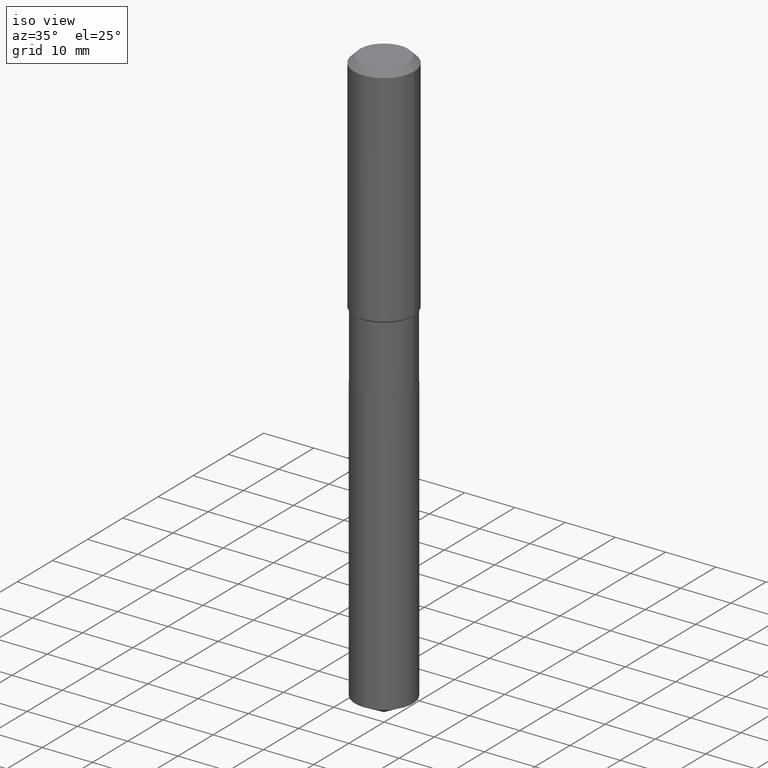
[diagram: clean part render]
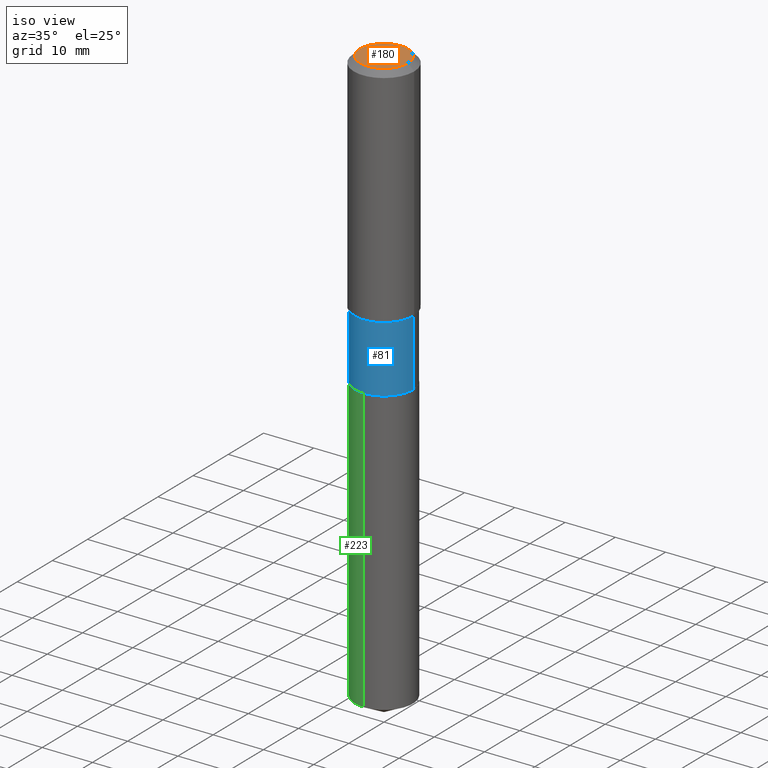
[diagram: same view with three faces highlighted in distinct colors, each labeled with its STEP entity id]
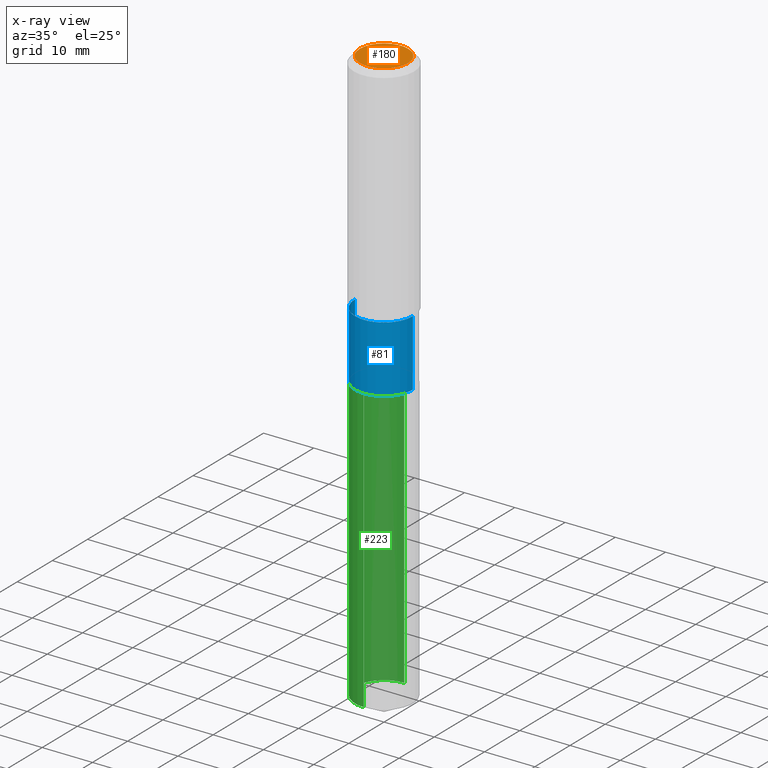
[diagram: x-ray of the same camera — body ghosted, the three highlighted faces saturated]
A machine part, iso view with three faces highlighted in distinct colors.
The next image is the same camera in x-ray (body ghosted, the three faces saturated) — at least one of them is partly hidden behind the body in this view.
Their STEP definitions:

[orange] entity #180 — the highlighted planar face has unit normal (0, -0, -1).
#11 = ORIENTED_EDGE ( 'NONE', *, *, #360, .T. ) ;
#35 = DIRECTION ( 'NONE',  ( 1.000000000000000000, -6.982962677686266711E-15, 4.876185090822587894E-29 ) ) ;
#38 = VERTEX_POINT ( 'NONE', #58 ) ;
#58 = CARTESIAN_POINT ( 'NONE',  ( 0.1889600000000000168, -1.540873453589747738E-15, 3.855188123725863225E-18 ) ) ;
#118 = DIRECTION ( 'NONE',  ( -2.445468806185136597E-29, 3.491481338843145583E-15, 1.000000000000000000 ) ) ;
#132 = EDGE_LOOP ( 'NONE', ( #11, #448 ) ) ;
#143 = DIRECTION ( 'NONE',  ( 1.000000000000000000, -6.982962677686266711E-15, 4.876185090822587894E-29 ) ) ;
#159 = EDGE_CURVE ( 'NONE', #38, #252, #437, .T. ) ;
#171 = AXIS2_PLACEMENT_3D ( 'NONE', #279, #118, #35 ) ;
#180 = ADVANCED_FACE ( 'NONE', ( #382 ), #311, .F. ) ;
#184 = AXIS2_PLACEMENT_3D ( 'NONE', #334, #370, #143 ) ;
#204 = CARTESIAN_POINT ( 'NONE',  ( -0.1889600000000000168, 1.401969416799070942E-15, 3.855188123706346622E-18 ) ) ;
#226 = DIRECTION ( 'NONE',  ( -1.000000000000000000, 6.982962677686265922E-15, -4.876176775795935793E-29 ) ) ;
#229 = AXIS2_PLACEMENT_3D ( 'NONE', #282, #422, #226 ) ;
#252 = VERTEX_POINT ( 'NONE', #204 ) ;
#279 = CARTESIAN_POINT ( 'NONE',  ( -9.427742298522546243E-47, 1.346031739168365344E-32, 3.855188123715862256E-18 ) ) ;
#282 = CARTESIAN_POINT ( 'NONE',  ( -4.713871149261273121E-47, 6.730158695841826722E-33, 1.927594061857931128E-18 ) ) ;
#311 = PLANE ( 'NONE',  #229 ) ;
#334 = CARTESIAN_POINT ( 'NONE',  ( -9.427742298522546243E-47, 1.346031739168365344E-32, 3.855188123715862256E-18 ) ) ;
#360 = EDGE_CURVE ( 'NONE', #252, #38, #391, .T. ) ;
#370 = DIRECTION ( 'NONE',  ( -2.445468806185136597E-29, 3.491481338843145583E-15, 1.000000000000000000 ) ) ;
#382 = FACE_OUTER_BOUND ( 'NONE', #132, .T. ) ;
#391 = CIRCLE ( 'NONE', #184, 0.1889600000000000168 ) ;
#422 = DIRECTION ( 'NONE',  ( 2.438088387897960049E-29, -3.491481338843145188E-15, -1.000000000000000000 ) ) ;
#437 = CIRCLE ( 'NONE', #171, 0.1889600000000000168 ) ;
#448 = ORIENTED_EDGE ( 'NONE', *, *, #159, .T. ) ;

[blue] entity #81 — the highlighted cylindrical surface (edge-blend (fillet) strip) has radius 5.7506 mm, axis along (-0, 0, 1).
#8 = VERTEX_POINT ( 'NONE', #369 ) ;
#12 = EDGE_CURVE ( 'NONE', #105, #8, #23, .T. ) ;
#17 = CIRCLE ( 'NONE', #106, 0.2263999999999999624 ) ;
#23 = LINE ( 'NONE', #362, #36 ) ;
#25 = CARTESIAN_POINT ( 'NONE',  ( 4.359048147025004325E-29, -6.223565486487904770E-15, -1.782499999999999307 ) ) ;
#33 = DIRECTION ( 'NONE',  ( -2.445468806185136877E-29, 3.491481338843145188E-15, 1.000000000000000000 ) ) ;
#36 = VECTOR ( 'NONE', #175, 39.37007874015748143 ) ;
#50 = EDGE_CURVE ( 'NONE', #354, #8, #283, .T. ) ;
#65 = DIRECTION ( 'NONE',  ( 1.000000000000000000, -6.982962677686269077E-15, 0.000000000000000000 ) ) ;
#67 = DIRECTION ( 'NONE',  ( 1.000000000000000000, -6.982962677686265922E-15, 4.876176775795935793E-29 ) ) ;
#70 = CARTESIAN_POINT ( 'NONE',  ( -0.2263999999999999624, -5.523031028960140857E-15, -2.302699999999999303 ) ) ;
#71 = DIRECTION ( 'NONE',  ( -2.445468806185136597E-29, 3.491481338843145583E-15, 1.000000000000000000 ) ) ;
#81 = ADVANCED_FACE ( 'NONE', ( #153 ), #111, .T. ) ;
#105 = VERTEX_POINT ( 'NONE', #188 ) ;
#106 = AXIS2_PLACEMENT_3D ( 'NONE', #466, #294, #65 ) ;
#111 = CYLINDRICAL_SURFACE ( 'NONE', #249, 0.2263999999999999346 ) ;
#120 = DIRECTION ( 'NONE',  ( 1.000000000000000000, -6.982962677686265922E-15, 0.000000000000000000 ) ) ;
#153 = FACE_OUTER_BOUND ( 'NONE', #388, .T. ) ;
#165 = EDGE_CURVE ( 'NONE', #359, #354, #379, .T. ) ;
#175 = DIRECTION ( 'NONE',  ( -2.445468806185136877E-29, 3.491481338843145188E-15, 1.000000000000000000 ) ) ;
#188 = CARTESIAN_POINT ( 'NONE',  ( 0.2263999999999999624, -9.620776829182280876E-15, -2.302699999999999303 ) ) ;
#197 = ORIENTED_EDGE ( 'NONE', *, *, #165, .F. ) ;
#217 = VECTOR ( 'NONE', #33, 39.37007874015748143 ) ;
#227 = ORIENTED_EDGE ( 'NONE', *, *, #50, .F. ) ;
#249 = AXIS2_PLACEMENT_3D ( 'NONE', #447, #420, #67 ) ;
#273 = CARTESIAN_POINT ( 'NONE',  ( -0.2263999999999999346, 1.608668753760866356E-15, -1.113646904433710280E-29 ) ) ;
#283 = CIRCLE ( 'NONE', #312, 0.2263999999999999069 ) ;
#294 = DIRECTION ( 'NONE',  ( -2.445468806185136597E-29, 3.491481338843145583E-15, 1.000000000000000000 ) ) ;
#312 = AXIS2_PLACEMENT_3D ( 'NONE', #25, #71, #120 ) ;
#354 = VERTEX_POINT ( 'NONE', #446 ) ;
#359 = VERTEX_POINT ( 'NONE', #70 ) ;
#362 = CARTESIAN_POINT ( 'NONE',  ( 0.2263999999999999346, -1.580942750228170233E-15, 1.103966422040199590E-29 ) ) ;
#369 = CARTESIAN_POINT ( 'NONE',  ( 0.2263999999999999069, -7.804508236716074411E-15, -1.782499999999999307 ) ) ;
#379 = LINE ( 'NONE', #273, #217 ) ;
#388 = EDGE_LOOP ( 'NONE', ( #197, #397, #426, #227 ) ) ;
#397 = ORIENTED_EDGE ( 'NONE', *, *, #482, .T. ) ;
#420 = DIRECTION ( 'NONE',  ( -2.445468806185136597E-29, 3.491481338843145583E-15, 1.000000000000000000 ) ) ;
#426 = ORIENTED_EDGE ( 'NONE', *, *, #12, .T. ) ;
#446 = CARTESIAN_POINT ( 'NONE',  ( -0.2263999999999999069, -5.523031028960140857E-15, -1.782499999999999307 ) ) ;
#447 = CARTESIAN_POINT ( 'NONE',  ( 0.000000000000000000, 0.000000000000000000, 0.000000000000000000 ) ) ;
#466 = CARTESIAN_POINT ( 'NONE',  ( 5.631181020002513283E-29, -8.039834078954108869E-15, -2.302699999999999303 ) ) ;
#482 = EDGE_CURVE ( 'NONE', #359, #105, #17, .T. ) ;

[green] entity #223 — the highlighted cylindrical surface (edge-blend (fillet) strip) has radius 5.7506 mm, axis along (-0, 0, 1).
#1 = CARTESIAN_POINT ( 'NONE',  ( 1.608668753760977191E-15, 0.2263999999999919133, -2.303200000000000358 ) ) ;
#7 = CARTESIAN_POINT ( 'NONE',  ( -1.580942750228060187E-15, -0.2264000000000157831, -4.525320984671840741 ) ) ;
#37 = AXIS2_PLACEMENT_3D ( 'NONE', #412, #473, #299 ) ;
#51 = CARTESIAN_POINT ( 'NONE',  ( 1.608668753760976994E-15, 0.2263999999999841972, -4.525320984671841629 ) ) ;
#57 = ORIENTED_EDGE ( 'NONE', *, *, #429, .T. ) ;
#69 = EDGE_LOOP ( 'NONE', ( #85, #403, #57, #172 ) ) ;
#74 = AXIS2_PLACEMENT_3D ( 'NONE', #317, #90, #396 ) ;
#85 = ORIENTED_EDGE ( 'NONE', *, *, #331, .F. ) ;
#90 = DIRECTION ( 'NONE',  ( -2.445449630818674093E-29, 3.491508799059314165E-15, 1.000000000000000000 ) ) ;
#112 = CARTESIAN_POINT ( 'NONE',  ( -1.580942750228114224E-15, -0.2264000000000080115, -2.303199999999998582 ) ) ;
#126 = VECTOR ( 'NONE', #136, 39.37007874015748143 ) ;
#136 = DIRECTION ( 'NONE',  ( -2.445449630818674093E-29, 3.491508799059314559E-15, 1.000000000000000000 ) ) ;
#144 = EDGE_CURVE ( 'NONE', #254, #158, #374, .T. ) ;
#147 = CARTESIAN_POINT ( 'NONE',  ( -1.580942750228114224E-15, -0.2264000000000080115, -2.303199999999998582 ) ) ;
#149 = DIRECTION ( 'NONE',  ( -2.445449630818674093E-29, 3.491508799059314559E-15, 1.000000000000000000 ) ) ;
#158 = VERTEX_POINT ( 'NONE', #112 ) ;
#161 = AXIS2_PLACEMENT_3D ( 'NONE', #185, #305, #231 ) ;
#172 = ORIENTED_EDGE ( 'NONE', *, *, #144, .F. ) ;
#185 = CARTESIAN_POINT ( 'NONE',  ( 5.632403754405604963E-29, -8.041579819623531161E-15, -2.303199999999999470 ) ) ;
#223 = ADVANCED_FACE ( 'NONE', ( #372 ), #377, .T. ) ;
#224 = CARTESIAN_POINT ( 'NONE',  ( 1.608668753760922760E-15, 0.2263999999999919410, -2.303200000000000358 ) ) ;
#231 = DIRECTION ( 'NONE',  ( -6.982962677686265922E-15, -1.000000000000000000, 3.619939920933211627E-15 ) ) ;
#254 = VERTEX_POINT ( 'NONE', #1 ) ;
#258 = VECTOR ( 'NONE', #149, 39.37007874015748143 ) ;
#265 = LINE ( 'NONE', #147, #126 ) ;
#299 = DIRECTION ( 'NONE',  ( -6.982962677686265922E-15, -1.000000000000000000, 2.413293280622141084E-15 ) ) ;
#300 = CIRCLE ( 'NONE', #37, 0.2263999999999999624 ) ;
#305 = DIRECTION ( 'NONE',  ( -2.445449630818674093E-29, 3.491508799059314165E-15, 1.000000000000000000 ) ) ;
#317 = CARTESIAN_POINT ( 'NONE',  ( 5.632403754405604963E-29, -8.041579819623531161E-15, -2.303199999999999470 ) ) ;
#320 = VERTEX_POINT ( 'NONE', #51 ) ;
#322 = VERTEX_POINT ( 'NONE', #7 ) ;
#331 = EDGE_CURVE ( 'NONE', #320, #254, #463, .T. ) ;
#372 = FACE_OUTER_BOUND ( 'NONE', #69, .T. ) ;
#374 = CIRCLE ( 'NONE', #161, 0.2263999999999999624 ) ;
#377 = CYLINDRICAL_SURFACE ( 'NONE', #74, 0.2263999999999999624 ) ;
#396 = DIRECTION ( 'NONE',  ( -6.982962677686265922E-15, -1.000000000000000000, 3.619939920933211627E-15 ) ) ;
#403 = ORIENTED_EDGE ( 'NONE', *, *, #443, .T. ) ;
#412 = CARTESIAN_POINT ( 'NONE',  ( 1.106648869600578829E-28, -1.580013479017961313E-14, -4.525320984671841629 ) ) ;
#429 = EDGE_CURVE ( 'NONE', #322, #158, #265, .T. ) ;
#443 = EDGE_CURVE ( 'NONE', #320, #322, #300, .T. ) ;
#463 = LINE ( 'NONE', #224, #258 ) ;
#473 = DIRECTION ( 'NONE',  ( -2.445449630818674093E-29, 3.491508799059314165E-15, 1.000000000000000000 ) ) ;